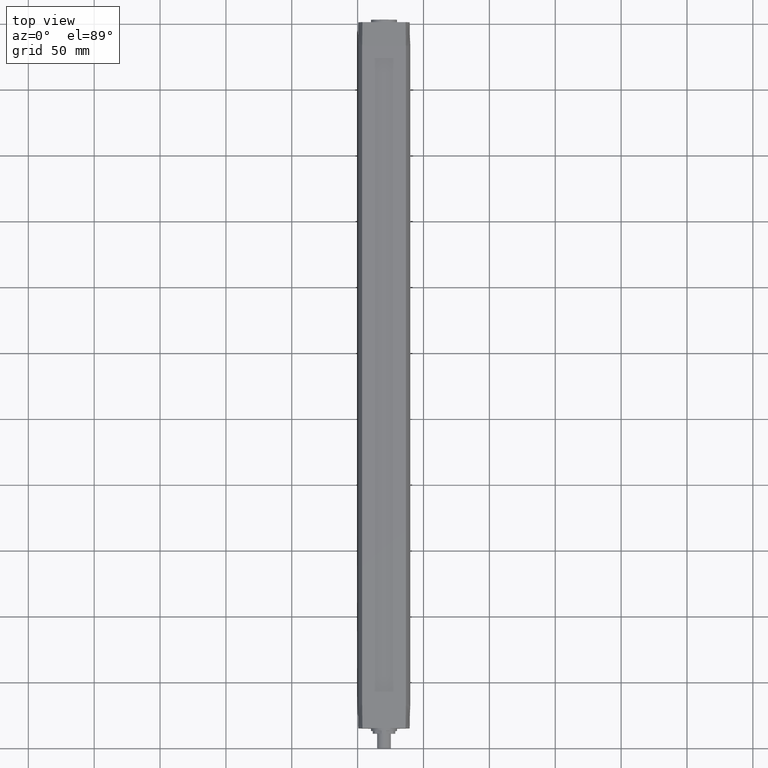
[diagram: clean part render]
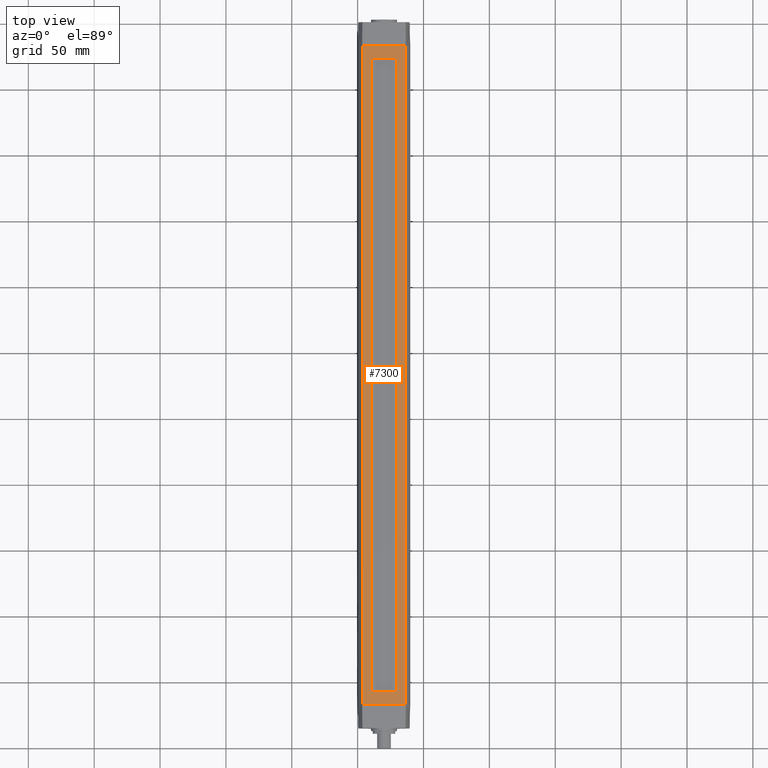
[diagram: same view with one face highlighted and labeled with its STEP entity id]
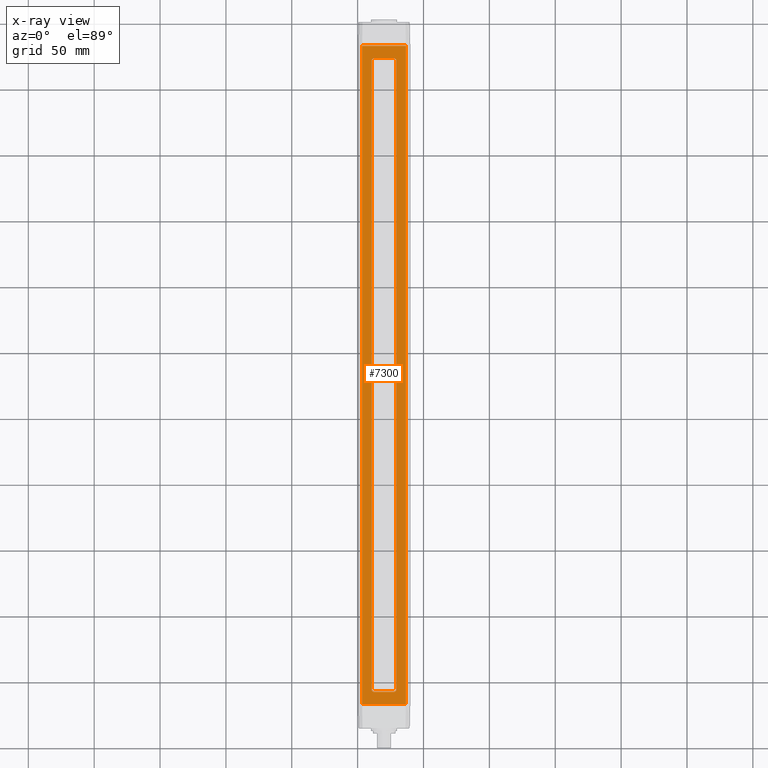
[diagram: x-ray of the same camera — body ghosted, the highlighted face saturated]
A machine part, top view. The second image highlights one B-rep face of the part: STEP entity #7300.
The next image is the same camera in x-ray: the body ghosted, the highlighted face saturated — about 0% of this face is hidden behind the body in this view.
In plain terms, the highlighted planar face has unit normal (0, 0, 1).
Its self-contained STEP definition (entity closure, byte-faithful):
#5470=CARTESIAN_POINT('',(-16.5698521417666,11.1999999999999,-250.));
#5480=VERTEX_POINT('',#5470);
#5510=CARTESIAN_POINT('',(-16.5698521417664,11.2,75.));
#5520=DIRECTION('',(0.,0.,-1.));
#5530=VECTOR('',#5520,1.);
#5540=LINE('',#5510,#5530);
#5550=CARTESIAN_POINT('',(-16.5698521417666,11.1999999999999,250.));
#5560=VERTEX_POINT('',#5550);
#5570=EDGE_CURVE('',#5560,#5480,#5540,.T.);
#6300=CARTESIAN_POINT('',(16.5698521417664,11.2,-75.));
#6310=DIRECTION('',(0.,1.,0.));
#6320=DIRECTION('',(0.,0.,1.));
#6330=AXIS2_PLACEMENT_3D('',#6300,#6310,#6320);
#6340=PLANE('',#6330);
#6350=CARTESIAN_POINT('',(7.49999999999999,11.2,-238.5));
#6360=DIRECTION('',(0.,1.,0.));
#6370=DIRECTION('',(1.,0.,5.6843418860808E-14));
#6380=AXIS2_PLACEMENT_3D('',#6350,#6360,#6370);
#6390=CIRCLE('',#6380,2.);
#6400=CARTESIAN_POINT('',(9.49999999999999,11.2,-238.5));
#6410=VERTEX_POINT('',#6400);
#6420=CARTESIAN_POINT('',(7.49999999999999,11.2,-240.5));
#6430=VERTEX_POINT('',#6420);
#6440=EDGE_CURVE('',#6410,#6430,#6390,.T.);
#6450=ORIENTED_EDGE('',*,*,#6440,.F.);
#6460=CARTESIAN_POINT('',(0.,11.2,-240.5));
#6470=DIRECTION('',(1.,0.,0.));
#6480=VECTOR('',#6470,1.);
#6490=LINE('',#6460,#6480);
#6500=CARTESIAN_POINT('',(-7.5,11.2,-240.5));
#6510=VERTEX_POINT('',#6500);
#6520=EDGE_CURVE('',#6510,#6430,#6490,.T.);
#6530=ORIENTED_EDGE('',*,*,#6520,.T.);
#6540=CARTESIAN_POINT('',(-7.49999999999999,11.2,-238.5));
#6550=DIRECTION('',(0.,1.,0.));
#6560=DIRECTION('',(0.,0.,-1.));
#6570=AXIS2_PLACEMENT_3D('',#6540,#6550,#6560);
#6580=CIRCLE('',#6570,2.);
#6590=CARTESIAN_POINT('',(-9.49999999999986,11.2,-238.5));
#6600=VERTEX_POINT('',#6590);
#6610=EDGE_CURVE('',#6510,#6600,#6580,.T.);
#6620=ORIENTED_EDGE('',*,*,#6610,.F.);
#6630=CARTESIAN_POINT('',(-9.49999999999992,11.2,0.));
#6640=DIRECTION('',(2.73184799366426E-16,0.,-1.));
#6650=VECTOR('',#6640,1.);
#6660=LINE('',#6630,#6650);
#6670=CARTESIAN_POINT('',(-9.49999999999999,11.2,238.5));
#6680=VERTEX_POINT('',#6670);
#6690=EDGE_CURVE('',#6680,#6600,#6660,.T.);
#6700=ORIENTED_EDGE('',*,*,#6690,.T.);
#6710=CARTESIAN_POINT('',(-7.49999999999999,11.2,238.5));
#6720=DIRECTION('',(0.,1.,0.));
#6730=DIRECTION('',(-1.,0.,0.));
#6740=AXIS2_PLACEMENT_3D('',#6710,#6720,#6730);
#6750=CIRCLE('',#6740,2.);
#6760=CARTESIAN_POINT('',(-7.5,11.2,240.5));
#6770=VERTEX_POINT('',#6760);
#6780=EDGE_CURVE('',#6680,#6770,#6750,.T.);
#6790=ORIENTED_EDGE('',*,*,#6780,.F.);
#6800=CARTESIAN_POINT('',(0.,11.2,240.5));
#6810=DIRECTION('',(-1.,0.,0.));
#6820=VECTOR('',#6810,1.);
#6830=LINE('',#6800,#6820);
#6840=CARTESIAN_POINT('',(7.49999999999999,11.2,240.5));
#6850=VERTEX_POINT('',#6840);
#6860=EDGE_CURVE('',#6850,#6770,#6830,.T.);
#6870=ORIENTED_EDGE('',*,*,#6860,.T.);
#6880=CARTESIAN_POINT('',(7.49999999999999,11.2,238.5));
#6890=DIRECTION('',(0.,1.,0.));
#6900=DIRECTION('',(0.,0.,1.));
#6910=AXIS2_PLACEMENT_3D('',#6880,#6890,#6900);
#6920=CIRCLE('',#6910,2.);
#6930=CARTESIAN_POINT('',(9.50000000000001,11.2,238.5));
#6940=VERTEX_POINT('',#6930);
#6950=EDGE_CURVE('',#6850,#6940,#6920,.T.);
#6960=ORIENTED_EDGE('',*,*,#6950,.F.);
#6970=CARTESIAN_POINT('',(9.49999999999999,11.2,0.));
#6980=DIRECTION('',(0.,0.,1.));
#6990=VECTOR('',#6980,1.);
#7000=LINE('',#6970,#6990);
#7010=EDGE_CURVE('',#6410,#6940,#7000,.T.);
#7020=ORIENTED_EDGE('',*,*,#7010,.T.);
#7030=EDGE_LOOP('',(#7020,#6960,#6870,#6790,#6700,#6620,#6530,#6450));
#7040=FACE_BOUND('',#7030,.T.);
#7050=CARTESIAN_POINT('',(16.5698521417664,11.2,-250.));
#7060=DIRECTION('',(-1.,0.,0.));
#7070=VECTOR('',#7060,1.);
#7080=LINE('',#7050,#7070);
#7090=CARTESIAN_POINT('',(16.5698521417666,11.1999999999999,-250.));
#7100=VERTEX_POINT('',#7090);
#7110=EDGE_CURVE('',#7100,#5480,#7080,.T.);
#7120=ORIENTED_EDGE('',*,*,#7110,.T.);
#7130=CARTESIAN_POINT('',(16.5698521417664,11.2,-75.));
#7140=DIRECTION('',(0.,0.,1.));
#7150=VECTOR('',#7140,1.);
#7160=LINE('',#7130,#7150);
#7170=CARTESIAN_POINT('',(16.5698521417664,11.2,250.));
#7180=VERTEX_POINT('',#7170);
#7190=EDGE_CURVE('',#7100,#7180,#7160,.T.);
#7200=ORIENTED_EDGE('',*,*,#7190,.F.);
#7210=CARTESIAN_POINT('',(-16.5698521417664,11.2,250.));
#7220=DIRECTION('',(1.,0.,0.));
#7230=VECTOR('',#7220,1.);
#7240=LINE('',#7210,#7230);
#7250=EDGE_CURVE('',#5560,#7180,#7240,.T.);
#7260=ORIENTED_EDGE('',*,*,#7250,.T.);
#7270=ORIENTED_EDGE('',*,*,#5570,.F.);
#7280=EDGE_LOOP('',(#7270,#7260,#7200,#7120));
#7290=FACE_OUTER_BOUND('',#7280,.T.);
#7300=ADVANCED_FACE('',(#7040,#7290),#6340,.T.);